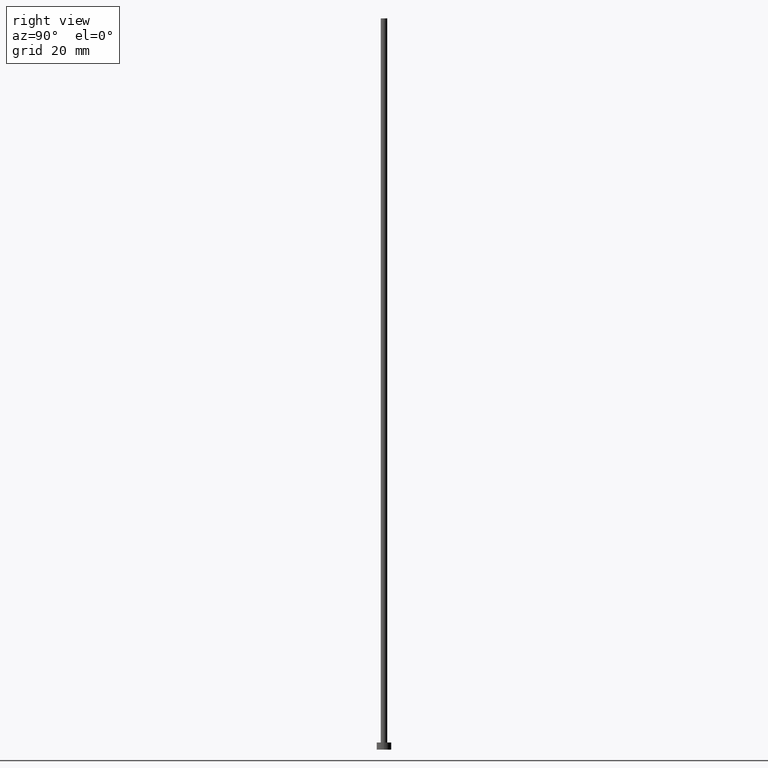
[diagram: clean part render]
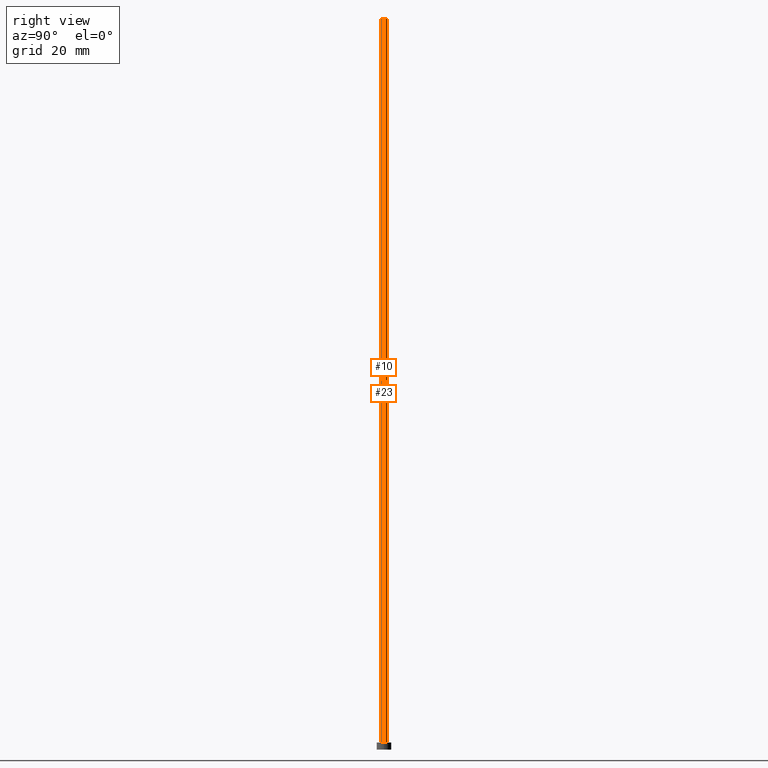
[diagram: same view with one multi-face feature highlighted, each face labeled with its STEP entity id]
A machine part, right view. The highlighted faces form ONE feature: a constant-radius fillet chain: 2 tangent blend faces with common blend radius 0.55 mm. The faces share edges in the B-rep.
Their STEP definitions:
[1] entity #23 (Cylinder):
#16 = EDGE_CURVE ( 'NONE', #134, #174, #196, .T. ) ;
#22 = CARTESIAN_POINT ( 'NONE',  ( 0.5500000000000000444, 6.735557395310442516E-17, 1.199999999999999956 ) ) ;
#23 = ADVANCED_FACE ( 'NONE', ( #44 ), #82, .T. ) ;
#24 = DIRECTION ( 'NONE',  ( 0.000000000000000000, 0.000000000000000000, 1.000000000000000000 ) ) ;
#36 = ORIENTED_EDGE ( 'NONE', *, *, #16, .T. ) ;
#44 = FACE_OUTER_BOUND ( 'NONE', #97, .T. ) ;
#49 = LINE ( 'NONE', #144, #136 ) ;
#54 = EDGE_CURVE ( 'NONE', #210, #112, #49, .T. ) ;
#59 = ORIENTED_EDGE ( 'NONE', *, *, #236, .F. ) ;
#66 = DIRECTION ( 'NONE',  ( -0.000000000000000000, -0.000000000000000000, -1.000000000000000000 ) ) ;
#74 = VECTOR ( 'NONE', #223, 1000.000000000000000 ) ;
#76 = AXIS2_PLACEMENT_3D ( 'NONE', #185, #170, #90 ) ;
#79 = ORIENTED_EDGE ( 'NONE', *, *, #197, .T. ) ;
#81 = CIRCLE ( 'NONE', #155, 0.5500000000000000444 ) ;
#82 = CYLINDRICAL_SURFACE ( 'NONE', #243, 0.5500000000000000444 ) ;
#84 = CARTESIAN_POINT ( 'NONE',  ( -0.5500000000000000444, 0.000000000000000000, 125.0000000000000000 ) ) ;
#90 = DIRECTION ( 'NONE',  ( 1.000000000000000000, 0.000000000000000000, 0.000000000000000000 ) ) ;
#97 = EDGE_LOOP ( 'NONE', ( #59, #36, #79, #117 ) ) ;
#100 = DIRECTION ( 'NONE',  ( -0.000000000000000000, -0.000000000000000000, -1.000000000000000000 ) ) ;
#112 = VERTEX_POINT ( 'NONE', #122 ) ;
#117 = ORIENTED_EDGE ( 'NONE', *, *, #54, .F. ) ;
#122 = CARTESIAN_POINT ( 'NONE',  ( -0.5500000000000000444, 0.000000000000000000, 1.199999999999999956 ) ) ;
#134 = VERTEX_POINT ( 'NONE', #158 ) ;
#136 = VECTOR ( 'NONE', #66, 1000.000000000000000 ) ;
#144 = CARTESIAN_POINT ( 'NONE',  ( -0.5500000000000000444, 0.000000000000000000, 125.0000000000000000 ) ) ;
#145 = DIRECTION ( 'NONE',  ( 1.000000000000000000, 0.000000000000000000, 0.000000000000000000 ) ) ;
#155 = AXIS2_PLACEMENT_3D ( 'NONE', #203, #24, #145 ) ;
#158 = CARTESIAN_POINT ( 'NONE',  ( 0.5500000000000000444, 6.735557395310442516E-17, 125.0000000000000000 ) ) ;
#170 = DIRECTION ( 'NONE',  ( 0.000000000000000000, 0.000000000000000000, 1.000000000000000000 ) ) ;
#174 = VERTEX_POINT ( 'NONE', #22 ) ;
#185 = CARTESIAN_POINT ( 'NONE',  ( 0.000000000000000000, 0.000000000000000000, 125.0000000000000000 ) ) ;
#196 = LINE ( 'NONE', #239, #74 ) ;
#197 = EDGE_CURVE ( 'NONE', #174, #112, #81, .T. ) ;
#200 = DIRECTION ( 'NONE',  ( -1.000000000000000000, 0.000000000000000000, 0.000000000000000000 ) ) ;
#202 = CARTESIAN_POINT ( 'NONE',  ( 0.000000000000000000, 0.000000000000000000, 125.0000000000000000 ) ) ;
#203 = CARTESIAN_POINT ( 'NONE',  ( 0.000000000000000000, 0.000000000000000000, 1.199999999999999956 ) ) ;
#210 = VERTEX_POINT ( 'NONE', #84 ) ;
#223 = DIRECTION ( 'NONE',  ( -0.000000000000000000, -0.000000000000000000, -1.000000000000000000 ) ) ;
#225 = CIRCLE ( 'NONE', #76, 0.5500000000000000444 ) ;
#236 = EDGE_CURVE ( 'NONE', #134, #210, #225, .T. ) ;
#239 = CARTESIAN_POINT ( 'NONE',  ( 0.5500000000000000444, 6.735557395310442516E-17, 125.0000000000000000 ) ) ;
#243 = AXIS2_PLACEMENT_3D ( 'NONE', #202, #100, #200 ) ;
[2] entity #10 (Cylinder):
#10 = ADVANCED_FACE ( 'NONE', ( #246 ), #75, .T. ) ;
#16 = EDGE_CURVE ( 'NONE', #134, #174, #196, .T. ) ;
#19 = ORIENTED_EDGE ( 'NONE', *, *, #16, .F. ) ;
#22 = CARTESIAN_POINT ( 'NONE',  ( 0.5500000000000000444, 6.735557395310442516E-17, 1.199999999999999956 ) ) ;
#26 = AXIS2_PLACEMENT_3D ( 'NONE', #251, #198, #237 ) ;
#37 = DIRECTION ( 'NONE',  ( -0.000000000000000000, -0.000000000000000000, -1.000000000000000000 ) ) ;
#49 = LINE ( 'NONE', #144, #136 ) ;
#50 = CIRCLE ( 'NONE', #26, 0.5500000000000000444 ) ;
#54 = EDGE_CURVE ( 'NONE', #210, #112, #49, .T. ) ;
#61 = EDGE_CURVE ( 'NONE', #112, #174, #110, .T. ) ;
#66 = DIRECTION ( 'NONE',  ( -0.000000000000000000, -0.000000000000000000, -1.000000000000000000 ) ) ;
#74 = VECTOR ( 'NONE', #223, 1000.000000000000000 ) ;
#75 = CYLINDRICAL_SURFACE ( 'NONE', #123, 0.5500000000000000444 ) ;
#77 = EDGE_CURVE ( 'NONE', #210, #134, #50, .T. ) ;
#80 = EDGE_LOOP ( 'NONE', ( #19, #215, #95, #113 ) ) ;
#84 = CARTESIAN_POINT ( 'NONE',  ( -0.5500000000000000444, 0.000000000000000000, 125.0000000000000000 ) ) ;
#95 = ORIENTED_EDGE ( 'NONE', *, *, #54, .T. ) ;
#110 = CIRCLE ( 'NONE', #230, 0.5500000000000000444 ) ;
#112 = VERTEX_POINT ( 'NONE', #122 ) ;
#113 = ORIENTED_EDGE ( 'NONE', *, *, #61, .T. ) ;
#114 = DIRECTION ( 'NONE',  ( -1.000000000000000000, 0.000000000000000000, 0.000000000000000000 ) ) ;
#119 = CARTESIAN_POINT ( 'NONE',  ( 0.000000000000000000, 0.000000000000000000, 1.199999999999999956 ) ) ;
#122 = CARTESIAN_POINT ( 'NONE',  ( -0.5500000000000000444, 0.000000000000000000, 1.199999999999999956 ) ) ;
#123 = AXIS2_PLACEMENT_3D ( 'NONE', #154, #37, #114 ) ;
#134 = VERTEX_POINT ( 'NONE', #158 ) ;
#136 = VECTOR ( 'NONE', #66, 1000.000000000000000 ) ;
#144 = CARTESIAN_POINT ( 'NONE',  ( -0.5500000000000000444, 0.000000000000000000, 125.0000000000000000 ) ) ;
#154 = CARTESIAN_POINT ( 'NONE',  ( 0.000000000000000000, 0.000000000000000000, 125.0000000000000000 ) ) ;
#158 = CARTESIAN_POINT ( 'NONE',  ( 0.5500000000000000444, 6.735557395310442516E-17, 125.0000000000000000 ) ) ;
#174 = VERTEX_POINT ( 'NONE', #22 ) ;
#177 = DIRECTION ( 'NONE',  ( 0.000000000000000000, 0.000000000000000000, 1.000000000000000000 ) ) ;
#196 = LINE ( 'NONE', #239, #74 ) ;
#198 = DIRECTION ( 'NONE',  ( 0.000000000000000000, 0.000000000000000000, 1.000000000000000000 ) ) ;
#210 = VERTEX_POINT ( 'NONE', #84 ) ;
#215 = ORIENTED_EDGE ( 'NONE', *, *, #77, .F. ) ;
#223 = DIRECTION ( 'NONE',  ( -0.000000000000000000, -0.000000000000000000, -1.000000000000000000 ) ) ;
#230 = AXIS2_PLACEMENT_3D ( 'NONE', #119, #177, #234 ) ;
#234 = DIRECTION ( 'NONE',  ( 1.000000000000000000, 0.000000000000000000, 0.000000000000000000 ) ) ;
#237 = DIRECTION ( 'NONE',  ( 1.000000000000000000, 0.000000000000000000, 0.000000000000000000 ) ) ;
#239 = CARTESIAN_POINT ( 'NONE',  ( 0.5500000000000000444, 6.735557395310442516E-17, 125.0000000000000000 ) ) ;
#246 = FACE_OUTER_BOUND ( 'NONE', #80, .T. ) ;
#251 = CARTESIAN_POINT ( 'NONE',  ( 0.000000000000000000, 0.000000000000000000, 125.0000000000000000 ) ) ;